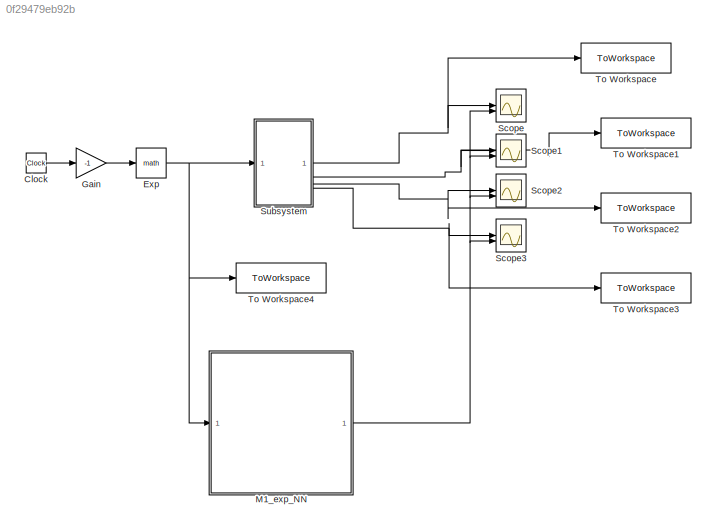
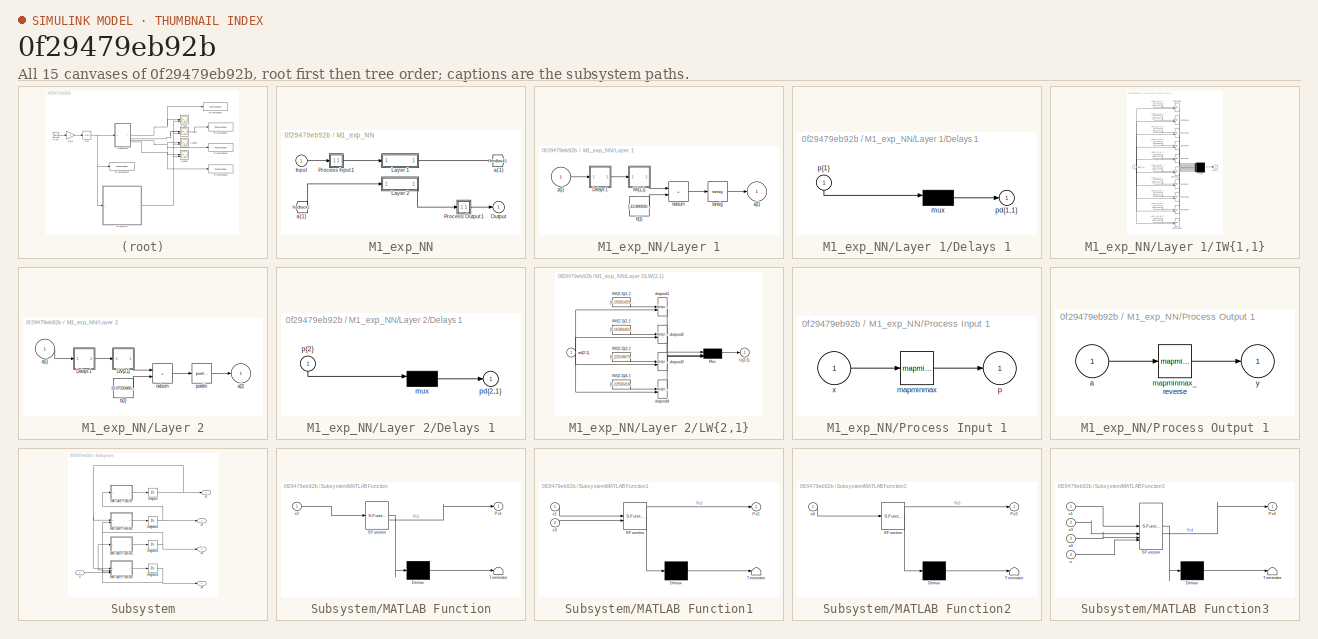
[diagram: thumbnail index - all 15 canvases of the model, root first then tree order]
MODEL slx_0f29479eb92b
KIND model
CONFIG AbsTol = auto
CONFIG EnableMultiTasking = off
CONFIG FixedStep = auto
CONFIG MaxStep = auto
CONFIG MinStep = auto
CONFIG RelTol = 1e-3
CONFIG SampleTimeConstraint = Unconstrained
CONFIG SolverName = VariableStepAuto
CONFIG StartTime = 0.0
CONFIG StopTime = 10.0
BLOCK [Clock] Clock
BLOCK [Math] Exp
BLOCK [Gain] Gain
  Gain = -1
BLOCK [SubSystem] M1_exp_NN
BLOCK [From] M1_exp_NN/ a{1} 
  GotoTag = feedback1
BLOCK [Inport] M1_exp_NN/Input
  PortDimensions = 1
BLOCK [SubSystem] M1_exp_NN/Layer 1
BLOCK [SubSystem] M1_exp_NN/Layer 1/Delays 1
BLOCK [Mux] M1_exp_NN/Layer 1/Delays 1/mux
  Inputs = 1
BLOCK [Outport] M1_exp_NN/Layer 1/Delays 1/pd{1,1}
BLOCK [Inport] M1_exp_NN/Layer 1/Delays 1/p{1}
  NameLocation = left
  PortDimensions = 1
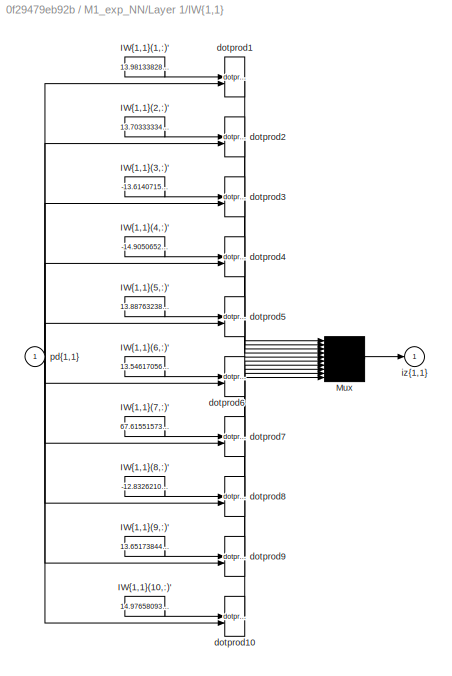
BLOCK [SubSystem] M1_exp_NN/Layer 1/IW{1,1}
BLOCK [Constant] M1_exp_NN/Layer 1/IW{1,1}/IW{1,1}(1,:)'
  Value = 13.9813382879990655283108935691416263580322265625
BLOCK [Constant] M1_exp_NN/Layer 1/IW{1,1}/IW{1,1}(10,:)'
  Value = 14.9765809321493836847594138816930353641510009765625
BLOCK [Constant] M1_exp_NN/Layer 1/IW{1,1}/IW{1,1}(2,:)'
  Value = 13.703333349049426459487222018651664257049560546875
BLOCK [Constant] M1_exp_NN/Layer 1/IW{1,1}/IW{1,1}(3,:)'
  Value = -13.6140715323037131412320377421565353870391845703125
BLOCK [Constant] M1_exp_NN/Layer 1/IW{1,1}/IW{1,1}(4,:)'
  Value = -14.9050652825776435150828547193668782711029052734375
BLOCK [Constant] M1_exp_NN/Layer 1/IW{1,1}/IW{1,1}(5,:)'
  Value = 13.8876323851969925016192064504139125347137451171875
BLOCK [Constant] M1_exp_NN/Layer 1/IW{1,1}/IW{1,1}(6,:)'
  Value = 13.546170561111278374255562084726989269256591796875
BLOCK [Constant] M1_exp_NN/Layer 1/IW{1,1}/IW{1,1}(7,:)'
  Value = 67.6155157391727783533497131429612636566162109375
BLOCK [Constant] M1_exp_NN/Layer 1/IW{1,1}/IW{1,1}(8,:)'
  Value = -12.832621099241418249903290416114032268524169921875
BLOCK [Constant] M1_exp_NN/Layer 1/IW{1,1}/IW{1,1}(9,:)'
  Value = 13.6517384441005784623257568455301225185394287109375
BLOCK [Mux] M1_exp_NN/Layer 1/IW{1,1}/Mux
  Inputs = 10
BLOCK [Reference] M1_exp_NN/Layer 1/IW{1,1}/dotprod1  REF=neural/Weight Functions/dotprod
  SourceBlock = neural/Weight Functions/dotprod
  SourceType = DOTPROD
BLOCK [Reference] M1_exp_NN/Layer 1/IW{1,1}/dotprod10  REF=neural/Weight Functions/dotprod
  SourceBlock = neural/Weight Functions/dotprod
  SourceType = DOTPROD
BLOCK [Reference] M1_exp_NN/Layer 1/IW{1,1}/dotprod2  REF=neural/Weight Functions/dotprod
  SourceBlock = neural/Weight Functions/dotprod
  SourceType = DOTPROD
BLOCK [Reference] M1_exp_NN/Layer 1/IW{1,1}/dotprod3  REF=neural/Weight Functions/dotprod
  SourceBlock = neural/Weight Functions/dotprod
  SourceType = DOTPROD
BLOCK [Reference] M1_exp_NN/Layer 1/IW{1,1}/dotprod4  REF=neural/Weight Functions/dotprod
  SourceBlock = neural/Weight Functions/dotprod
  SourceType = DOTPROD
BLOCK [Reference] M1_exp_NN/Layer 1/IW{1,1}/dotprod5  REF=neural/Weight Functions/dotprod
  SourceBlock = neural/Weight Functions/dotprod
  SourceType = DOTPROD
BLOCK [Reference] M1_exp_NN/Layer 1/IW{1,1}/dotprod6  REF=neural/Weight Functions/dotprod
  SourceBlock = neural/Weight Functions/dotprod
  SourceType = DOTPROD
BLOCK [Reference] M1_exp_NN/Layer 1/IW{1,1}/dotprod7  REF=neural/Weight Functions/dotprod
  SourceBlock = neural/Weight Functions/dotprod
  SourceType = DOTPROD
BLOCK [Reference] M1_exp_NN/Layer 1/IW{1,1}/dotprod8  REF=neural/Weight Functions/dotprod
  SourceBlock = neural/Weight Functions/dotprod
  SourceType = DOTPROD
BLOCK [Reference] M1_exp_NN/Layer 1/IW{1,1}/dotprod9  REF=neural/Weight Functions/dotprod
  SourceBlock = neural/Weight Functions/dotprod
  SourceType = DOTPROD
BLOCK [Outport] M1_exp_NN/Layer 1/IW{1,1}/iz{1,1}
BLOCK [Inport] M1_exp_NN/Layer 1/IW{1,1}/pd{1,1}
  PortDimensions = 1
BLOCK [Outport] M1_exp_NN/Layer 1/a{1}
  InitialOutput = [0;0;0;0;0;0;0;0;0;0]
BLOCK [Constant] M1_exp_NN/Layer 1/b{1}
  Value = [-13.98083064099527206280981772579252719879150390625;-11.432210800363254321609929320402443408966064453125;8.368556529022754375546355731785297393798828125;-0.24897707883077035972974044852890074253082275390625;3.246859936571592886167536562425084412097930908203125;2.5425946336400979674863265245221555233001708984375;28.83911395935684396363285486586391925811767578125;-7.40750725138137511294189607724547...<+119ch>
BLOCK [Sum] M1_exp_NN/Layer 1/netsum
  IconShape = rectangular
  InputSameDT = on
  Inputs = 2
  OutDataTypeStr = Inherit: Same as first input
  SaturateOnIntegerOverflow = on
BLOCK [Inport] M1_exp_NN/Layer 1/p{1}
  PortDimensions = 1
BLOCK [Reference] M1_exp_NN/Layer 1/tansig  REF=neural/Transfer Functions/tansig
  SourceBlock = neural/Transfer Functions/tansig
  SourceType = TANSIG
BLOCK [SubSystem] M1_exp_NN/Layer 2
BLOCK [SubSystem] M1_exp_NN/Layer 2/Delays 1
BLOCK [Mux] M1_exp_NN/Layer 2/Delays 1/mux
  Inputs = 1
BLOCK [Outport] M1_exp_NN/Layer 2/Delays 1/pd{2,1}
BLOCK [Inport] M1_exp_NN/Layer 2/Delays 1/p{2}
  NameLocation = left
  PortDimensions = 10
BLOCK [SubSystem] M1_exp_NN/Layer 2/LW{2,1}
BLOCK [Constant] M1_exp_NN/Layer 2/LW{2,1}/IW{2,1}(1,:)'
  Value = [0.193054936098505935948566047954955138266086578369140625;-0.79351566422701547143248035354190506041049957275390625;-1.0808461443747745533983106724917888641357421875;-0.17869207989572066797023808248923160135746002197265625;-0.53077200360037835036308706548879854381084442138671875;0.2162555862066145306865649899918935261666774749755859375;0.478742066272312027930269096032134257256984710693359375;-0.114...<+169ch>
BLOCK [Constant] M1_exp_NN/Layer 2/LW{2,1}/IW{2,1}(2,:)'
  Value = [0.1638446124477579701750329377318848855793476104736328125;-0.667829401143329004497672940487973392009735107421875;-0.96210861244025125404988330046762712299823760986328125;-0.1911847789867121283347017879350460134446620941162109375;-0.430279599117714572908965919850743375718593597412109375;0.1661216313493697194214604451190098188817501068115234375;0.4235942232204636392900454211485339328646659851074218...<+177ch>
BLOCK [Constant] M1_exp_NN/Layer 2/LW{2,1}/IW{2,1}(3,:)'
  Value = [0.2355987306636177780472252152321743778884410858154296875;-0.962674676417122565652562116156332194805145263671875;-1.23640338089504187024658676818944513797760009765625;-0.1631743765617215957686170213492005132138729095458984375;-0.7867960650477210382547355038695968687534332275390625;0.321599893584598117701744968144339509308338165283203125;0.6361085984873835474928682742756791412830352783203125;-0.11...<+171ch>
BLOCK [Constant] M1_exp_NN/Layer 2/LW{2,1}/IW{2,1}(4,:)'
  Value = [0.22930418260621843185020907185389660298824310302734375;-0.966632977545334615143701739725656807422637939453125;-1.2478500725790946379589740899973548948764801025390625;-0.1599028831800742567192941123721539042890071868896484375;-0.2186388485583235785636446735225035808980464935302734375;0.13018184653743436474115924283978529274463653564453125;0.25436170214272613154804503210471011698246002197265625;-0...<+176ch>
BLOCK [Mux] M1_exp_NN/Layer 2/LW{2,1}/Mux
BLOCK [Inport] M1_exp_NN/Layer 2/LW{2,1}/ad{2,1}
  PortDimensions = 10
BLOCK [Reference] M1_exp_NN/Layer 2/LW{2,1}/dotprod1  REF=neural/Weight Functions/dotprod
  SourceBlock = neural/Weight Functions/dotprod
  SourceType = DOTPROD
BLOCK [Reference] M1_exp_NN/Layer 2/LW{2,1}/dotprod2  REF=neural/Weight Functions/dotprod
  SourceBlock = neural/Weight Functions/dotprod
  SourceType = DOTPROD
BLOCK [Reference] M1_exp_NN/Layer 2/LW{2,1}/dotprod3  REF=neural/Weight Functions/dotprod
  SourceBlock = neural/Weight Functions/dotprod
  SourceType = DOTPROD
BLOCK [Reference] M1_exp_NN/Layer 2/LW{2,1}/dotprod4  REF=neural/Weight Functions/dotprod
  SourceBlock = neural/Weight Functions/dotprod
  SourceType = DOTPROD
BLOCK [Outport] M1_exp_NN/Layer 2/LW{2,1}/lz{2,1}
BLOCK [Inport] M1_exp_NN/Layer 2/a{1} 
  PortDimensions = 10
BLOCK [Outport] M1_exp_NN/Layer 2/a{2}
  InitialOutput = [0;0;0;0]
BLOCK [Constant] M1_exp_NN/Layer 2/b{2}
  Value = [0.0759348552898983786274555995987611822783946990966796875;0.063000389104740206480670394739718176424503326416015625;0.09481519959053009982685722434325725771486759185791015625;0.09149053456368268222309581005902145989239215850830078125]
BLOCK [Sum] M1_exp_NN/Layer 2/netsum
  IconShape = rectangular
  InputSameDT = on
  Inputs = 2
  OutDataTypeStr = Inherit: Same as first input
  SaturateOnIntegerOverflow = on
BLOCK [Reference] M1_exp_NN/Layer 2/purelin  REF=neural/Transfer Functions/purelin
  SourceBlock = neural/Transfer Functions/purelin
  SourceType = PURELIN
BLOCK [Outport] M1_exp_NN/Output
  InitialOutput = [0;0;0;0]
BLOCK [SubSystem] M1_exp_NN/Process Input 1
BLOCK [Reference] M1_exp_NN/Process Input 1/mapminmax  REF=neural/Processing Functions/mapminmax
  SourceBlock = neural/Processing Functions/mapminmax
  SourceType = MAPMINMAX Preprocess
BLOCK [Outport] M1_exp_NN/Process Input 1/p
  PortDimensions = 1
BLOCK [Inport] M1_exp_NN/Process Input 1/x
  PortDimensions = 1
BLOCK [SubSystem] M1_exp_NN/Process Output 1
BLOCK [Inport] M1_exp_NN/Process Output 1/a
  PortDimensions = 4
BLOCK [Reference] M1_exp_NN/Process Output 1/mapminmax_reverse  REF=neural/Processing Functions/mapminmax_reverse
  SourceBlock = neural/Processing Functions/mapminmax_reverse
  SourceType = MAPMINMAX Reverse Process
BLOCK [Outport] M1_exp_NN/Process Output 1/y
  PortDimensions = 4
BLOCK [Goto] M1_exp_NN/a{1}
  GotoTag = feedback1
BLOCK [Scope] Scope
  Floating = off
  NumInputPorts = 2
  ScopeSpecificationString = Simulink.scopes.TimeScopeBlockCfg('CurrentConfiguration', extmgr.ConfigurationSet(extmgr.Configuration('Core','General UI',true),extmgr.Configuration('Core','Source UI',true),extmgr.Configuration('Sources','WiredSimulink',true,'DataLoggingVariableName','ScopeData1'),extmgr.Configuration('Visuals','Time Domain',true,'SerializedDisplays',{struct('MinYLimReal','-0.8267','MaxYLimReal','5.91238','YLabe...<+1424ch>
BLOCK [Scope] Scope1
  Floating = off
  NumInputPorts = 2
  ScopeSpecificationString = Simulink.scopes.TimeScopeBlockCfg('CurrentConfiguration', extmgr.ConfigurationSet(extmgr.Configuration('Core','General UI',true),extmgr.Configuration('Core','Source UI',true),extmgr.Configuration('Sources','WiredSimulink',true,'DataLoggingVariableName','ScopeData2'),extmgr.Configuration('Visuals','Time Domain',true,'SerializedDisplays',{struct('MinYLimReal','-3448.76938','MaxYLimReal','31038.92439...<+1540ch>
BLOCK [Scope] Scope2
  Floating = off
  NumInputPorts = 2
  ScopeSpecificationString = Simulink.scopes.TimeScopeBlockCfg('CurrentConfiguration', extmgr.ConfigurationSet(extmgr.Configuration('Core','General UI',true),extmgr.Configuration('Core','Source UI',true),extmgr.Configuration('Sources','WiredSimulink',true,'DataLoggingVariableName','ScopeData3'),extmgr.Configuration('Visuals','Time Domain',true,'SerializedDisplays',{struct('MinYLimReal','-3448.76938','MaxYLimReal','31038.92439...<+1568ch>
BLOCK [Scope] Scope3
  Floating = off
  NumInputPorts = 2
  ScopeSpecificationString = Simulink.scopes.TimeScopeBlockCfg('CurrentConfiguration', extmgr.ConfigurationSet(extmgr.Configuration('Core','General UI',true),extmgr.Configuration('Core','Source UI',true),extmgr.Configuration('Sources','WiredSimulink',true),extmgr.Configuration('Visuals','Time Domain',true,'SerializedDisplays',{struct('MinYLimReal','-3448.76938','MaxYLimReal','31038.92439','YLabelReal','','MinYLimMag','  0.000...<+1533ch>
BLOCK [SubSystem] Subsystem
BLOCK [Integrator] Subsystem/Integrator
BLOCK [Integrator] Subsystem/Integrator1
BLOCK [Integrator] Subsystem/Integrator2
BLOCK [Integrator] Subsystem/Integrator3
BLOCK [SubSystem] Subsystem/MATLAB Function
  ErrorFcn = Stateflow.Translate.translate
  LibrarySourceBlock = simulink/User-Defined\nFunctions/MATLAB Function
  PermitHierarchicalResolution = ExplicitOnly
  SFBlockType = MATLAB Function
  TreatAsAtomicUnit = on
BLOCK [Demux] Subsystem/MATLAB Function/ Demux 
  Outputs = 1
BLOCK [S-Function] Subsystem/MATLAB Function/ SFunction 
  EnableBusSupport = on
  FunctionName = sf_sfun
  PortCounts = [1 2]
  SFcnIsStateOwnerBlock = off
  SFunctionDeploymentMode = off
  Tag = Stateflow S-Function 2
BLOCK [Terminator] Subsystem/MATLAB Function/ Terminator 
BLOCK [Outport] Subsystem/MATLAB Function/Px1
BLOCK [Inport] Subsystem/MATLAB Function/x2
BLOCK [SubSystem] Subsystem/MATLAB Function1
  ErrorFcn = Stateflow.Translate.translate
  LibrarySourceBlock = simulink/User-Defined\nFunctions/MATLAB Function
  PermitHierarchicalResolution = ExplicitOnly
  SFBlockType = MATLAB Function
  TreatAsAtomicUnit = on
BLOCK [Demux] Subsystem/MATLAB Function1/ Demux 
  Outputs = 1
BLOCK [S-Function] Subsystem/MATLAB Function1/ SFunction 
  EnableBusSupport = on
  FunctionName = sf_sfun
  PortCounts = [2 2]
  SFcnIsStateOwnerBlock = off
  SFunctionDeploymentMode = off
  Tag = Stateflow S-Function 1
BLOCK [Terminator] Subsystem/MATLAB Function1/ Terminator 
BLOCK [Outport] Subsystem/MATLAB Function1/Px2
BLOCK [Inport] Subsystem/MATLAB Function1/x1
BLOCK [Inport] Subsystem/MATLAB Function1/x3
  Port = 2
BLOCK [SubSystem] Subsystem/MATLAB Function2
  ErrorFcn = Stateflow.Translate.translate
  LibrarySourceBlock = simulink/User-Defined\nFunctions/MATLAB Function
  PermitHierarchicalResolution = ExplicitOnly
  SFBlockType = MATLAB Function
  TreatAsAtomicUnit = on
BLOCK [Demux] Subsystem/MATLAB Function2/ Demux 
  Outputs = 1
BLOCK [S-Function] Subsystem/MATLAB Function2/ SFunction 
  EnableBusSupport = on
  FunctionName = sf_sfun
  PortCounts = [1 2]
  SFcnIsStateOwnerBlock = off
  SFunctionDeploymentMode = off
  Tag = Stateflow S-Function 3
BLOCK [Terminator] Subsystem/MATLAB Function2/ Terminator 
BLOCK [Outport] Subsystem/MATLAB Function2/Px3
BLOCK [Inport] Subsystem/MATLAB Function2/x4
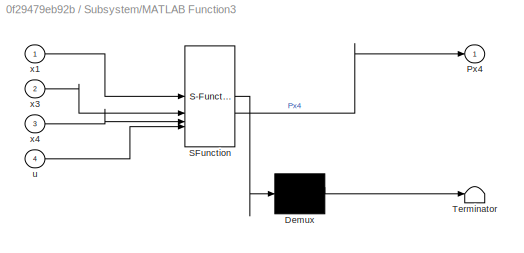
BLOCK [SubSystem] Subsystem/MATLAB Function3
  ErrorFcn = Stateflow.Translate.translate
  LibrarySourceBlock = simulink/User-Defined\nFunctions/MATLAB Function
  PermitHierarchicalResolution = ExplicitOnly
  SFBlockType = MATLAB Function
  TreatAsAtomicUnit = on
BLOCK [Demux] Subsystem/MATLAB Function3/ Demux 
  Outputs = 1
BLOCK [S-Function] Subsystem/MATLAB Function3/ SFunction 
  EnableBusSupport = on
  FunctionName = sf_sfun
  PortCounts = [4 2]
  SFcnIsStateOwnerBlock = off
  SFunctionDeploymentMode = off
  Tag = Stateflow S-Function 4
BLOCK [Terminator] Subsystem/MATLAB Function3/ Terminator 
BLOCK [Outport] Subsystem/MATLAB Function3/Px4
BLOCK [Inport] Subsystem/MATLAB Function3/u
  Port = 4
BLOCK [Inport] Subsystem/MATLAB Function3/x1
BLOCK [Inport] Subsystem/MATLAB Function3/x3
  Port = 2
BLOCK [Inport] Subsystem/MATLAB Function3/x4
  Port = 3
BLOCK [Inport] Subsystem/u
BLOCK [Outport] Subsystem/x1
BLOCK [Outport] Subsystem/x2
  Port = 2
BLOCK [Outport] Subsystem/x3
  Port = 3
BLOCK [Outport] Subsystem/x4
  Port = 4
BLOCK [ToWorkspace] To Workspace
  FixptAsFi = on
  MaxDataPoints = inf
  SampleTime = -1
  SaveFormat = Structure With Time
  VariableName = x1
BLOCK [ToWorkspace] To Workspace1
  FixptAsFi = on
  MaxDataPoints = inf
  SampleTime = -1
  SaveFormat = Structure With Time
  VariableName = x2
BLOCK [ToWorkspace] To Workspace2
  FixptAsFi = on
  MaxDataPoints = inf
  SampleTime = -1
  SaveFormat = Structure With Time
  VariableName = x3
BLOCK [ToWorkspace] To Workspace3
  FixptAsFi = on
  MaxDataPoints = inf
  SampleTime = -1
  SaveFormat = Structure With Time
  VariableName = x4
BLOCK [ToWorkspace] To Workspace4
  FixptAsFi = on
  MaxDataPoints = inf
  SampleTime = -1
  SaveFormat = Structure With Time
  VariableName = u
LINE Clock:1 -> Gain:1
NET Exp:1 -> M1_exp_NN:1, Subsystem:1, To Workspace4:1
LINE Gain:1 -> Exp:1
LINE M1_exp_NN/ a{1} :1 -> M1_exp_NN/Layer 2:1
LINE M1_exp_NN/Input:1 -> M1_exp_NN/Process Input 1:1
LINE M1_exp_NN/Layer 1/Delays 1/mux:1 -> M1_exp_NN/Layer 1/Delays 1/pd{1,1}:1
LINE M1_exp_NN/Layer 1/Delays 1/p{1}:1 -> M1_exp_NN/Layer 1/Delays 1/mux:1
LINE M1_exp_NN/Layer 1/Delays 1:1 -> M1_exp_NN/Layer 1/IW{1,1}:1
LINE M1_exp_NN/Layer 1/IW{1,1}/IW{1,1}(1,:)':1 -> M1_exp_NN/Layer 1/IW{1,1}/dotprod1:1
LINE M1_exp_NN/Layer 1/IW{1,1}/IW{1,1}(10,:)':1 -> M1_exp_NN/Layer 1/IW{1,1}/dotprod10:1
LINE M1_exp_NN/Layer 1/IW{1,1}/IW{1,1}(2,:)':1 -> M1_exp_NN/Layer 1/IW{1,1}/dotprod2:1
LINE M1_exp_NN/Layer 1/IW{1,1}/IW{1,1}(3,:)':1 -> M1_exp_NN/Layer 1/IW{1,1}/dotprod3:1
LINE M1_exp_NN/Layer 1/IW{1,1}/IW{1,1}(4,:)':1 -> M1_exp_NN/Layer 1/IW{1,1}/dotprod4:1
LINE M1_exp_NN/Layer 1/IW{1,1}/IW{1,1}(5,:)':1 -> M1_exp_NN/Layer 1/IW{1,1}/dotprod5:1
LINE M1_exp_NN/Layer 1/IW{1,1}/IW{1,1}(6,:)':1 -> M1_exp_NN/Layer 1/IW{1,1}/dotprod6:1
LINE M1_exp_NN/Layer 1/IW{1,1}/IW{1,1}(7,:)':1 -> M1_exp_NN/Layer 1/IW{1,1}/dotprod7:1
LINE M1_exp_NN/Layer 1/IW{1,1}/IW{1,1}(8,:)':1 -> M1_exp_NN/Layer 1/IW{1,1}/dotprod8:1
LINE M1_exp_NN/Layer 1/IW{1,1}/IW{1,1}(9,:)':1 -> M1_exp_NN/Layer 1/IW{1,1}/dotprod9:1
LINE M1_exp_NN/Layer 1/IW{1,1}/Mux:1 -> M1_exp_NN/Layer 1/IW{1,1}/iz{1,1}:1
LINE M1_exp_NN/Layer 1/IW{1,1}/dotprod10:1 -> M1_exp_NN/Layer 1/IW{1,1}/Mux:10
LINE M1_exp_NN/Layer 1/IW{1,1}/dotprod1:1 -> M1_exp_NN/Layer 1/IW{1,1}/Mux:1
LINE M1_exp_NN/Layer 1/IW{1,1}/dotprod2:1 -> M1_exp_NN/Layer 1/IW{1,1}/Mux:2
LINE M1_exp_NN/Layer 1/IW{1,1}/dotprod3:1 -> M1_exp_NN/Layer 1/IW{1,1}/Mux:3
LINE M1_exp_NN/Layer 1/IW{1,1}/dotprod4:1 -> M1_exp_NN/Layer 1/IW{1,1}/Mux:4
LINE M1_exp_NN/Layer 1/IW{1,1}/dotprod5:1 -> M1_exp_NN/Layer 1/IW{1,1}/Mux:5
LINE M1_exp_NN/Layer 1/IW{1,1}/dotprod6:1 -> M1_exp_NN/Layer 1/IW{1,1}/Mux:6
LINE M1_exp_NN/Layer 1/IW{1,1}/dotprod7:1 -> M1_exp_NN/Layer 1/IW{1,1}/Mux:7
LINE M1_exp_NN/Layer 1/IW{1,1}/dotprod8:1 -> M1_exp_NN/Layer 1/IW{1,1}/Mux:8
LINE M1_exp_NN/Layer 1/IW{1,1}/dotprod9:1 -> M1_exp_NN/Layer 1/IW{1,1}/Mux:9
NET M1_exp_NN/Layer 1/IW{1,1}/pd{1,1}:1 -> M1_exp_NN/Layer 1/IW{1,1}/dotprod10:2, M1_exp_NN/Layer 1/IW{1,1}/dotprod1:2, M1_exp_NN/Layer 1/IW{1,1}/dotprod2:2, M1_exp_NN/Layer 1/IW{1,1}/dotprod3:2, M1_exp_NN/Layer 1/IW{1,1}/dotprod4:2, M1_exp_NN/Layer 1/IW{1,1}/dotprod5:2, M1_exp_NN/Layer 1/IW{1,1}/dotprod6:2, M1_exp_NN/Layer 1/IW{1,1}/dotprod7:2, M1_exp_NN/Layer 1/IW{1,1}/dotprod8:2, M1_exp_NN/Layer 1/IW{1,1}/dotprod9:2
LINE M1_exp_NN/Layer 1/IW{1,1}:1 -> M1_exp_NN/Layer 1/netsum:1
LINE M1_exp_NN/Layer 1/b{1}:1 -> M1_exp_NN/Layer 1/netsum:2
LINE M1_exp_NN/Layer 1/netsum:1 -> M1_exp_NN/Layer 1/tansig:1
LINE M1_exp_NN/Layer 1/p{1}:1 -> M1_exp_NN/Layer 1/Delays 1:1
LINE M1_exp_NN/Layer 1/tansig:1 -> M1_exp_NN/Layer 1/a{1}:1
LINE M1_exp_NN/Layer 1:1 -> M1_exp_NN/a{1}:1
LINE M1_exp_NN/Layer 2/Delays 1/mux:1 -> M1_exp_NN/Layer 2/Delays 1/pd{2,1}:1
LINE M1_exp_NN/Layer 2/Delays 1/p{2}:1 -> M1_exp_NN/Layer 2/Delays 1/mux:1
LINE M1_exp_NN/Layer 2/Delays 1:1 -> M1_exp_NN/Layer 2/LW{2,1}:1
LINE M1_exp_NN/Layer 2/LW{2,1}/IW{2,1}(1,:)':1 -> M1_exp_NN/Layer 2/LW{2,1}/dotprod1:1
LINE M1_exp_NN/Layer 2/LW{2,1}/IW{2,1}(2,:)':1 -> M1_exp_NN/Layer 2/LW{2,1}/dotprod2:1
LINE M1_exp_NN/Layer 2/LW{2,1}/IW{2,1}(3,:)':1 -> M1_exp_NN/Layer 2/LW{2,1}/dotprod3:1
LINE M1_exp_NN/Layer 2/LW{2,1}/IW{2,1}(4,:)':1 -> M1_exp_NN/Layer 2/LW{2,1}/dotprod4:1
LINE M1_exp_NN/Layer 2/LW{2,1}/Mux:1 -> M1_exp_NN/Layer 2/LW{2,1}/lz{2,1}:1
NET M1_exp_NN/Layer 2/LW{2,1}/ad{2,1}:1 -> M1_exp_NN/Layer 2/LW{2,1}/dotprod1:2, M1_exp_NN/Layer 2/LW{2,1}/dotprod2:2, M1_exp_NN/Layer 2/LW{2,1}/dotprod3:2, M1_exp_NN/Layer 2/LW{2,1}/dotprod4:2
LINE M1_exp_NN/Layer 2/LW{2,1}/dotprod1:1 -> M1_exp_NN/Layer 2/LW{2,1}/Mux:1
LINE M1_exp_NN/Layer 2/LW{2,1}/dotprod2:1 -> M1_exp_NN/Layer 2/LW{2,1}/Mux:2
LINE M1_exp_NN/Layer 2/LW{2,1}/dotprod3:1 -> M1_exp_NN/Layer 2/LW{2,1}/Mux:3
LINE M1_exp_NN/Layer 2/LW{2,1}/dotprod4:1 -> M1_exp_NN/Layer 2/LW{2,1}/Mux:4
LINE M1_exp_NN/Layer 2/LW{2,1}:1 -> M1_exp_NN/Layer 2/netsum:1
LINE M1_exp_NN/Layer 2/a{1} :1 -> M1_exp_NN/Layer 2/Delays 1:1
LINE M1_exp_NN/Layer 2/b{2}:1 -> M1_exp_NN/Layer 2/netsum:2
LINE M1_exp_NN/Layer 2/netsum:1 -> M1_exp_NN/Layer 2/purelin:1
LINE M1_exp_NN/Layer 2/purelin:1 -> M1_exp_NN/Layer 2/a{2}:1
LINE M1_exp_NN/Layer 2:1 -> M1_exp_NN/Process Output 1:1
LINE M1_exp_NN/Process Input 1/mapminmax:1 -> M1_exp_NN/Process Input 1/p:1
LINE M1_exp_NN/Process Input 1/x:1 -> M1_exp_NN/Process Input 1/mapminmax:1
LINE M1_exp_NN/Process Input 1:1 -> M1_exp_NN/Layer 1:1
LINE M1_exp_NN/Process Output 1/a:1 -> M1_exp_NN/Process Output 1/mapminmax_reverse:1
LINE M1_exp_NN/Process Output 1/mapminmax_reverse:1 -> M1_exp_NN/Process Output 1/y:1
LINE M1_exp_NN/Process Output 1:1 -> M1_exp_NN/Output:1
NET M1_exp_NN:1 -> Scope1:2, Scope2:2, Scope3:2, Scope:2
NET Subsystem/Integrator1:1 -> Subsystem/MATLAB Function:1, Subsystem/x2:1
NET Subsystem/Integrator2:1 -> Subsystem/MATLAB Function1:2, Subsystem/MATLAB Function3:2, Subsystem/x3:1
NET Subsystem/Integrator3:1 -> Subsystem/MATLAB Function2:1, Subsystem/MATLAB Function3:3, Subsystem/x4:1
NET Subsystem/Integrator:1 -> Subsystem/MATLAB Function1:1, Subsystem/MATLAB Function3:1, Subsystem/x1:1
LINE Subsystem/MATLAB Function1:1 -> Subsystem/Integrator1:1
LINE Subsystem/MATLAB Function2:1 -> Subsystem/Integrator2:1
LINE Subsystem/MATLAB Function3:1 -> Subsystem/Integrator3:1
LINE Subsystem/MATLAB Function:1 -> Subsystem/Integrator:1
LINE Subsystem/u:1 -> Subsystem/MATLAB Function3:4
NET Subsystem:1 -> Scope:1, To Workspace:1
NET Subsystem:2 -> Scope1:1, To Workspace1:1
NET Subsystem:3 -> Scope2:1, To Workspace2:1
NET Subsystem:4 -> Scope3:1, To Workspace3:1
note: NET lines group one-source signal fan-out (src -> all destinations, sorted); 1:1 wires keep LINE
CHART Subsystem/MATLAB Function1 states=1 transitions=1
  STATE_LABEL 'eML_blk_kernel()'
  STATE_LABEL 'SCRIPT:\nfunction Px2 = fcn(x1,x3)\nmgl = 5;\nj1 = 1;\nke = 100;\n\nPx2 = -((mgl)/j1)*sin(x1)-(ke/j1)*(x1-x3);\n'
CHART Subsystem/MATLAB Function states=1 transitions=1
  STATE_LABEL 'eML_blk_kernel()'
  STATE_LABEL 'SCRIPT:\nfunction Px1 = fcn(x2)\n\nPx1 = x2;\n'
CHART Subsystem/MATLAB Function2 states=1 transitions=1
  STATE_LABEL 'eML_blk_kernel()'
  STATE_LABEL 'SCRIPT:\nfunction Px3 = fcn(x4)\n\n\nPx3 = x4;\n'
CHART Subsystem/MATLAB Function3 states=1 transitions=1
  STATE_LABEL 'eML_blk_kernel()'
  STATE_LABEL 'SCRIPT:\nfunction Px4 = fcn(x1,x3,x4,u)\nmu = 0.1;\njr = 0.3;\nke = 100;\n\nPx4 = (ke/jr)*(x1-x3)-(mu/jr)*x4+(1/jr)*u;\n'
CHART  states=0 transitions=0
CHART  states=0 transitions=0
CHART  states=0 transitions=0
CHART  states=0 transitions=0
